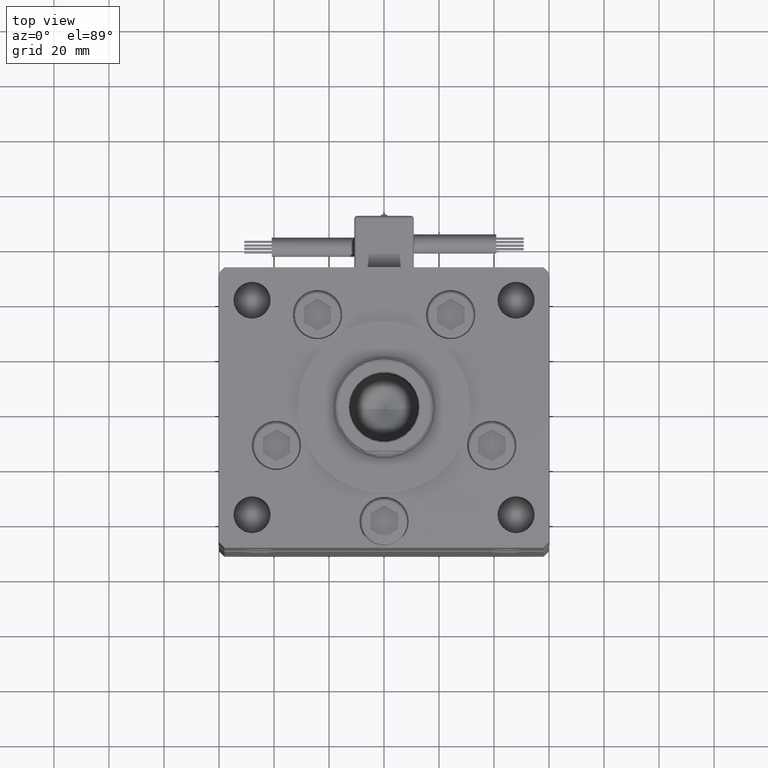
[diagram: clean part render]
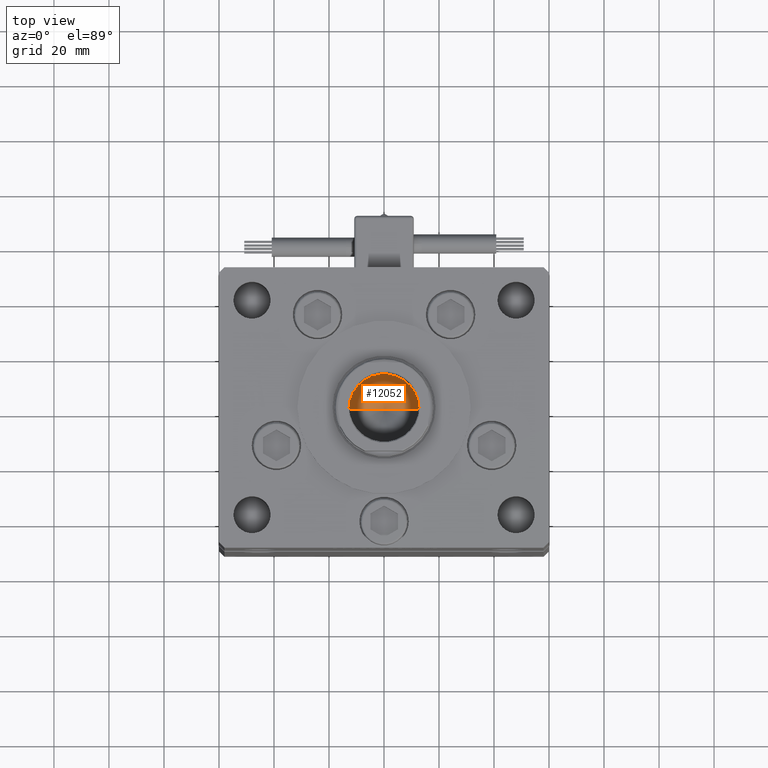
[diagram: same view with one face highlighted and labeled with its STEP entity id]
A machine part, top view. The second image highlights one B-rep face of the part: STEP entity #12052.
In plain terms, the highlighted conical surface has half-angle 59 deg.
Its self-contained STEP definition (entity closure, byte-faithful):
#2893 = EDGE_LOOP ( 'NONE', ( #36924, #40672, #43251 ) ) ;
#3422 = VECTOR ( 'NONE', #3643, 1000.000000000000000 ) ;
#3643 = DIRECTION ( 'NONE',  ( -0.8571673007021117785, 1.049727191138617956E-16, 0.5150380749100550437 ) ) ;
#6858 = CARTESIAN_POINT ( 'NONE',  ( -1.307202896762960287E-14, 0.000000000000000000, 116.5890271073986213 ) ) ;
#8172 = CARTESIAN_POINT ( 'NONE',  ( 0.000000000000000000, 0.000000000000000000, 124.2500000000000142 ) ) ;
#8759 = CARTESIAN_POINT ( 'NONE',  ( -12.74999999999999112, 1.561424668912874125E-15, 124.2500000000000142 ) ) ;
#11156 = AXIS2_PLACEMENT_3D ( 'NONE', #35727, #14041, #53394 ) ;
#12052 = ADVANCED_FACE ( 'NONE', ( #31754 ), #40298, .F. ) ;
#13528 = EDGE_CURVE ( 'NONE', #20726, #28164, #31999, .T. ) ;
#14041 = DIRECTION ( 'NONE',  ( -0.000000000000000000, -0.000000000000000000, 1.000000000000000000 ) ) ;
#20726 = VERTEX_POINT ( 'NONE', #6858 ) ;
#28164 = VERTEX_POINT ( 'NONE', #41274 ) ;
#29103 = EDGE_CURVE ( 'NONE', #20726, #32109, #38700, .T. ) ;
#31754 = FACE_OUTER_BOUND ( 'NONE', #2893, .T. ) ;
#31955 = EDGE_CURVE ( 'NONE', #28164, #32109, #55398, .T. ) ;
#31999 = LINE ( 'NONE', #48521, #40337 ) ;
#32109 = VERTEX_POINT ( 'NONE', #42562 ) ;
#35727 = CARTESIAN_POINT ( 'NONE',  ( 0.000000000000000000, 0.000000000000000000, 124.2500000000000142 ) ) ;
#36924 = ORIENTED_EDGE ( 'NONE', *, *, #29103, .F. ) ;
#37159 = AXIS2_PLACEMENT_3D ( 'NONE', #8172, #38951, #42945 ) ;
#38700 = LINE ( 'NONE', #8759, #3422 ) ;
#38951 = DIRECTION ( 'NONE',  ( -0.000000000000000000, -0.000000000000000000, 1.000000000000000000 ) ) ;
#40298 = CONICAL_SURFACE ( 'NONE', #11156, 12.74999999999999112, 1.029744258676653423 ) ;
#40337 = VECTOR ( 'NONE', #40545, 1000.000000000000000 ) ;
#40545 = DIRECTION ( 'NONE',  ( 0.8571673007021117785, 0.000000000000000000, 0.5150380749100550437 ) ) ;
#40672 = ORIENTED_EDGE ( 'NONE', *, *, #13528, .T. ) ;
#41274 = CARTESIAN_POINT ( 'NONE',  ( 12.74999999999999112, 0.000000000000000000, 124.2500000000000142 ) ) ;
#42562 = CARTESIAN_POINT ( 'NONE',  ( -12.74999999999999112, 1.561424668912874125E-15, 124.2500000000000142 ) ) ;
#42945 = DIRECTION ( 'NONE',  ( 1.000000000000000000, 0.000000000000000000, 0.000000000000000000 ) ) ;
#43251 = ORIENTED_EDGE ( 'NONE', *, *, #31955, .T. ) ;
#48521 = CARTESIAN_POINT ( 'NONE',  ( 12.74999999999999112, 0.000000000000000000, 124.2500000000000142 ) ) ;
#53394 = DIRECTION ( 'NONE',  ( 1.000000000000000000, 0.000000000000000000, 0.000000000000000000 ) ) ;
#55398 = CIRCLE ( 'NONE', #37159, 12.74999999999999112 ) ;